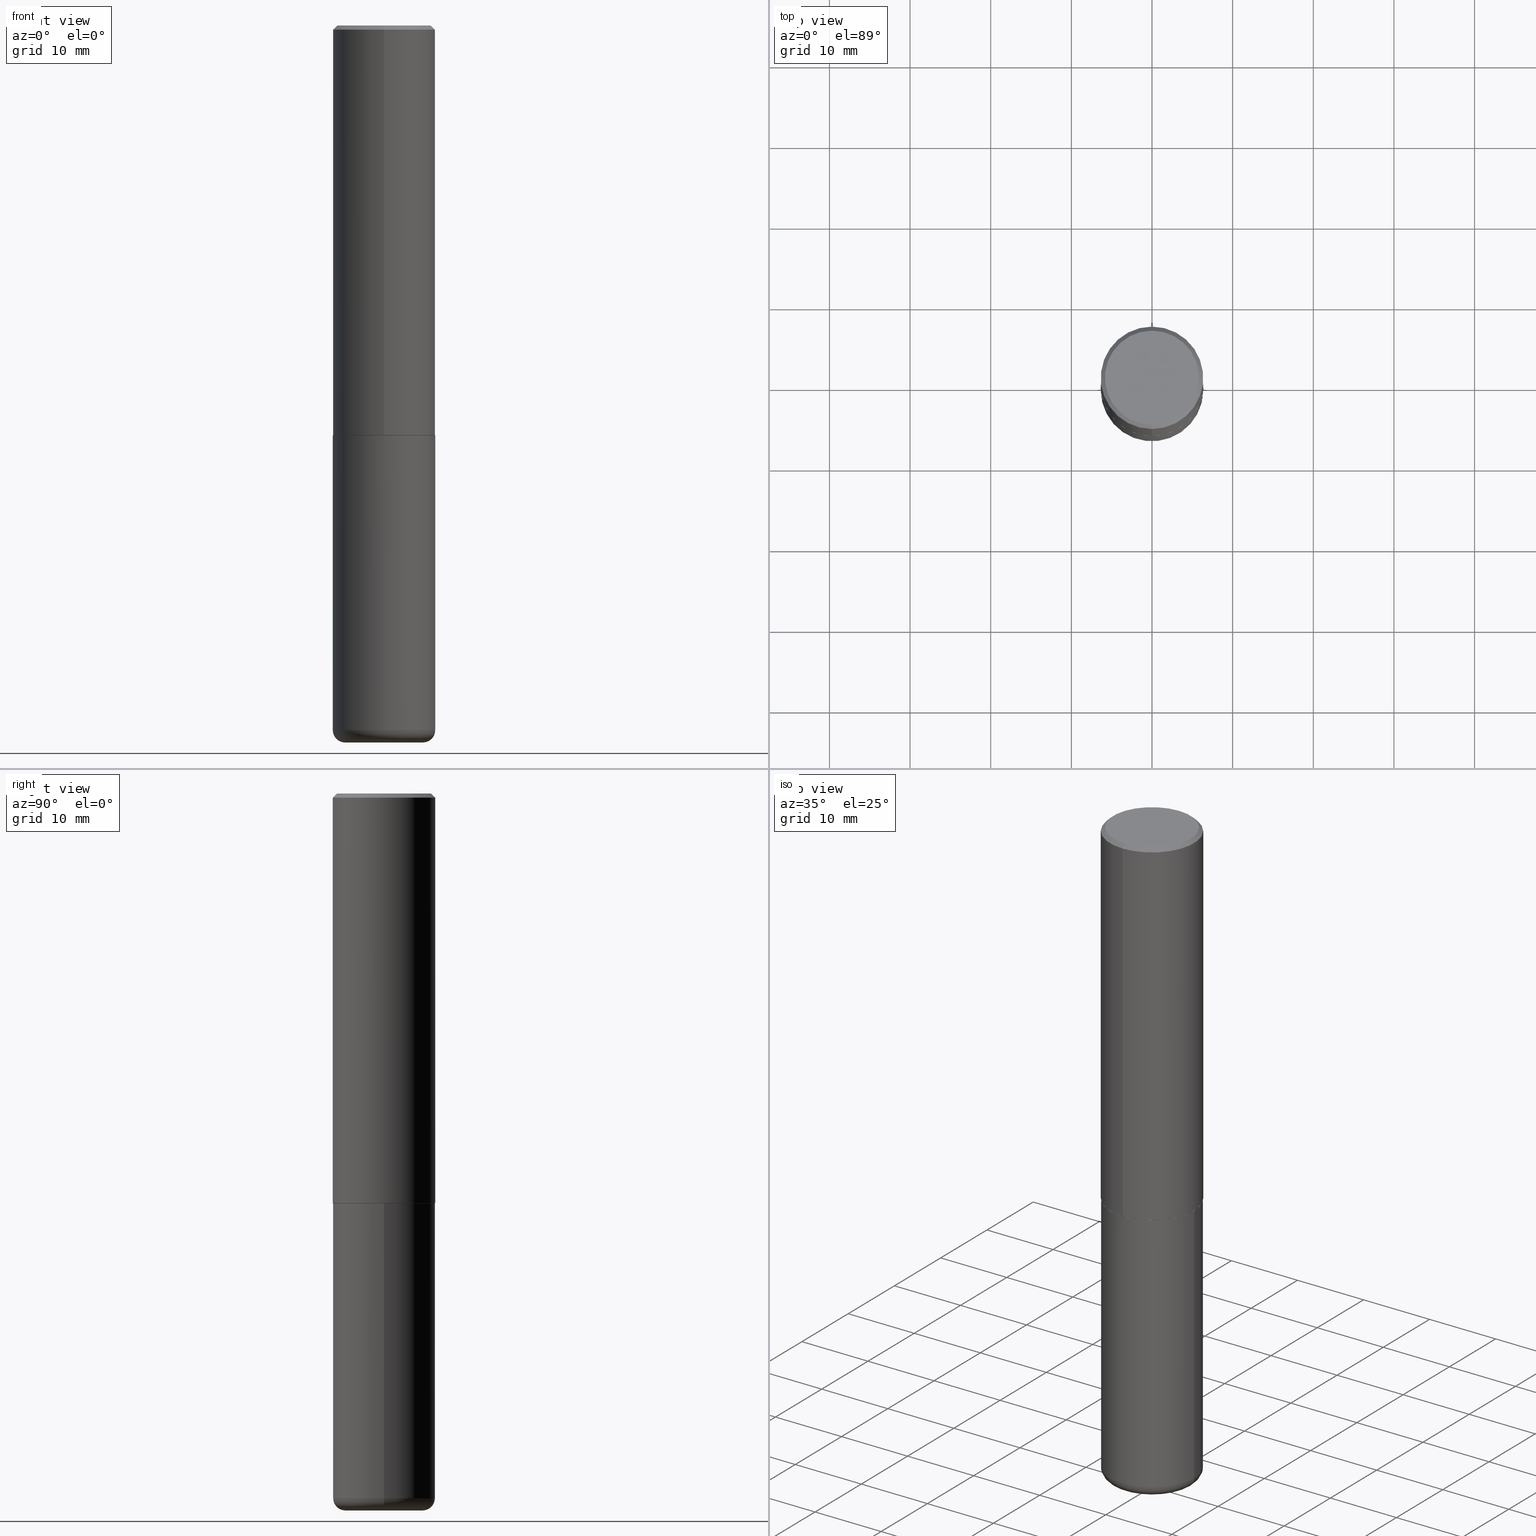
[diagram: canonical four-view strip — front | top / right | iso, engineering-drawing reading convention]
A machine part, canonical four-view strip (front | top / right | iso — engineering-drawing reading convention). The complete STEP part file that produces these views, byte-faithful:
ISO-10303-21;
HEADER;
FILE_DESCRIPTION (( 'STEP AP203' ),
    '1' );
FILE_NAME ('77362.STEP',
    '2024-05-02T19:32:27',
    ( '' ),
    ( '' ),
    'SwSTEP 2.0',
    'SolidWorks 2023',
    '' );
FILE_SCHEMA (( 'CONFIG_CONTROL_DESIGN' ));
ENDSEC;

DATA;
#1 = DIRECTION ( 'NONE',  ( -2.445468806185136597E-29, 3.491481338843145583E-15, 1.000000000000000000 ) ) ;
#2 = ORIENTED_EDGE ( 'NONE', *, *, #330, .F. ) ;
#3 = DIRECTION ( 'NONE',  ( 1.000000000000000000, -6.982962677686266711E-15, 0.000000000000000000 ) ) ;
#4 = AXIS2_PLACEMENT_3D ( 'NONE', #46, #335, #267 ) ;
#5 = VERTEX_POINT ( 'NONE', #36 ) ;
#6 = CIRCLE ( 'NONE', #179, 0.2500000000000002776 ) ;
#7 = LINE ( 'NONE', #38, #64 ) ;
#8 = EDGE_CURVE ( 'NONE', #130, #129, #63, .T. ) ;
#9 = PLANE ( 'NONE',  #332 ) ;
#10 = VECTOR ( 'NONE', #376, 39.37007874015748143 ) ;
#11 = AXIS2_PLACEMENT_3D ( 'NONE', #74, #359, #169 ) ;
#12 = CC_DESIGN_PERSON_AND_ORGANIZATION_ASSIGNMENT ( #148, #124, ( #87 ) ) ;
#13 = DIRECTION ( 'NONE',  ( -6.982962677686266711E-15, -1.000000000000000000, 3.493471632758652550E-15 ) ) ;
#14 = CARTESIAN_POINT ( 'NONE',  ( 1.675911042644703182E-15, 0.2299999999999997047, -4.914392961565924424E-16 ) ) ;
#15 = CARTESIAN_POINT ( 'NONE',  ( 0.2500000000000000000, -1.745740669421566678E-15, 1.219044193948983948E-29 ) ) ;
#16 = COORDINATED_UNIVERSAL_TIME_OFFSET ( 5, 0, .BEHIND. ) ;
#17 = DIRECTION ( 'NONE',  ( -6.982962677686265133E-15, -1.000000000000000000, 3.291383124896702687E-15 ) ) ;
#18 = PERSON_AND_ORGANIZATION ( #367, #388 ) ;
#19 = APPROVAL_DATE_TIME ( #308, #116 ) ;
#20 = PRODUCT_DEFINITION_FORMATION_WITH_SPECIFIED_SOURCE ( 'ANY', '', #149, .NOT_KNOWN. ) ;
#21 = ADVANCED_FACE ( 'NONE', ( #107 ), #409, .T. ) ;
#22 = CARTESIAN_POINT ( 'NONE',  ( 0.000000000000000000, 0.000000000000000000, 0.000000000000000000 ) ) ;
#23 = DATE_TIME_ROLE ( 'creation_date' ) ;
#24 = APPLICATION_CONTEXT ( 'configuration controlled 3d designs of mechanical parts and assemblies' ) ;
#25 = EDGE_LOOP ( 'NONE', ( #248, #66 ) ) ;
#26 = DIRECTION ( 'NONE',  ( 1.000000000000000000, -6.982962677686265133E-15, 4.883557194083112340E-29 ) ) ;
#27 = PERSON_AND_ORGANIZATION ( #367, #388 ) ;
#28 = ORIENTED_EDGE ( 'NONE', *, *, #384, .F. ) ;
#29 = APPROVAL_PERSON_ORGANIZATION ( #214, #116, #408 ) ;
#30 = EDGE_LOOP ( 'NONE', ( #85, #31, #226, #256 ) ) ;
#31 = ORIENTED_EDGE ( 'NONE', *, *, #299, .T. ) ;
#32 = ORIENTED_EDGE ( 'NONE', *, *, #177, .T. ) ;
#33 = DIRECTION ( 'NONE',  ( -6.982962677686265922E-15, -1.000000000000000000, 3.493471632758652550E-15 ) ) ;
#34 = DIRECTION ( 'NONE',  ( 1.000000000000000000, -6.982962677686270655E-15, 0.000000000000000000 ) ) ;
#35 = CLOSED_SHELL ( 'NONE', ( #69, #232, #265, #192, #39, #21, #412, #53 ) ) ;
#36 = CARTESIAN_POINT ( 'NONE',  ( -1.646519519465166376E-15, -0.2299999999999997047, 1.115557654912385711E-15 ) ) ;
#37 = APPROVAL ( #372, 'UNSPECIFIED' ) ;
#38 = CARTESIAN_POINT ( 'NONE',  ( -1.715124499442882496E-15, -0.2500000000000001110, -0.01999999999999921632 ) ) ;
#39 = ADVANCED_FACE ( 'NONE', ( #120 ), #57, .T. ) ;
#40 = CARTESIAN_POINT ( 'NONE',  ( -1.745740669421519543E-15, -0.2500000000000072720, -1.998999999999999000 ) ) ;
#41 = DIRECTION ( 'NONE',  ( -6.982962677686266711E-15, -1.000000000000000000, 3.491481338843145583E-15 ) ) ;
#42 = EDGE_CURVE ( 'NONE', #229, #252, #275, .T. ) ;
#43 = DIRECTION ( 'NONE',  ( 1.000000000000000000, -6.982962677686265133E-15, 4.883557194083112340E-29 ) ) ;
#44 = CARTESIAN_POINT ( 'NONE',  ( 4.888157982744351127E-29, -6.986943265517304311E-15, -2.000000000000000000 ) ) ;
#45 = AXIS2_PLACEMENT_3D ( 'NONE', #363, #80, #207 ) ;
#46 = CARTESIAN_POINT ( 'NONE',  ( 4.885713903752978284E-29, -6.983449793884546288E-15, -1.998999999999999888 ) ) ;
#47 =( NAMED_UNIT ( * ) SI_UNIT ( $, .STERADIAN. ) SOLID_ANGLE_UNIT ( ) );
#48 = MECHANICAL_CONTEXT ( 'NONE', #24, 'mechanical' ) ;
#49 = APPROVAL_ROLE ( '' ) ;
#50 = AXIS2_PLACEMENT_3D ( 'NONE', #300, #203, #239 ) ;
#51 = AXIS2_PLACEMENT_3D ( 'NONE', #187, #253, #288 ) ;
#52 = CALENDAR_DATE ( 2024, 2, 5 ) ;
#53 = ADVANCED_FACE ( 'NONE', ( #54 ), #224, .F. ) ;
#54 = FACE_OUTER_BOUND ( 'NONE', #25, .T. ) ;
#55 = APPROVAL_DATE_TIME ( #217, #37 ) ;
#56 = ORIENTED_EDGE ( 'NONE', *, *, #62, .T. ) ;
#57 = CYLINDRICAL_SURFACE ( 'NONE', #240, 0.2500000000000001110 ) ;
#58 = PERSON_AND_ORGANIZATION_ROLE ( 'design_supplier' ) ;
#59 = ORIENTED_EDGE ( 'NONE', *, *, #307, .T. ) ;
#60 = EDGE_CURVE ( 'NONE', #152, #129, #244, .T. ) ;
#61 = ORIENTED_EDGE ( 'NONE', *, *, #373, .F. ) ;
#62 = EDGE_CURVE ( 'NONE', #225, #285, #342, .T. ) ;
#63 = CIRCLE ( 'NONE', #121, 0.2500000000000000000 ) ;
#64 = VECTOR ( 'NONE', #296, 39.37007874015748854 ) ;
#65 = LOCAL_TIME ( 15, 32, 27.00000000000000000, #284 ) ;
#66 = ORIENTED_EDGE ( 'NONE', *, *, #350, .T. ) ;
#67 = ORIENTED_EDGE ( 'NONE', *, *, #142, .F. ) ;
#68 = CARTESIAN_POINT ( 'NONE',  ( 1.745740669421567269E-15, 0.2499999999999999722, -0.02000000000000096492 ) ) ;
#69 = ADVANCED_FACE ( 'NONE', ( #140 ), #73, .T. ) ;
#70 = ORIENTED_EDGE ( 'NONE', *, *, #185, .T. ) ;
#71 = DIRECTION ( 'NONE',  ( 2.444078991372175563E-29, -3.493471632758652550E-15, -1.000000000000000000 ) ) ;
#72 = CARTESIAN_POINT ( 'NONE',  ( 4.888157982744373443E-31, -6.986943265517335816E-17, -0.02000000000000009062 ) ) ;
#73 = CONICAL_SURFACE ( 'NONE', #402, 0.2489999999999999991, 0.7853981633975507526 ) ;
#74 = CARTESIAN_POINT ( 'NONE',  ( 8.559140821647976968E-29, -1.222018468595100934E-14, -3.500000000000000000 ) ) ;
#75 = PRODUCT_DEFINITION_SHAPE ( 'NONE', 'NONE',  #87 ) ;
#76 = DIRECTION ( 'NONE',  ( -2.445468806185136597E-29, 3.491481338843145583E-15, 1.000000000000000000 ) ) ;
#77 = DIRECTION ( 'NONE',  ( -2.445468806185136597E-29, 3.491481338843145583E-15, 1.000000000000000000 ) ) ;
#78 = AXIS2_PLACEMENT_3D ( 'NONE', #227, #391, #13 ) ;
#79 = LOCAL_TIME ( 15, 32, 27.00000000000000000, #340 ) ;
#80 = DIRECTION ( 'NONE',  ( 0.000000000000000000, 0.000000000000000000, 1.000000000000000000 ) ) ;
#81 = DESIGN_CONTEXT ( 'detailed design', #90, 'design' ) ;
#82 = PERSON_AND_ORGANIZATION_ROLE ( 'design_owner' ) ;
#83 = ADVANCED_FACE ( 'NONE', ( #172 ), #268, .F. ) ;
#84 = ORIENTED_EDGE ( 'NONE', *, *, #271, .T. ) ;
#85 = ORIENTED_EDGE ( 'NONE', *, *, #350, .F. ) ;
#86 =( GEOMETRIC_REPRESENTATION_CONTEXT ( 3 ) GLOBAL_UNCERTAINTY_ASSIGNED_CONTEXT ( ( #344 ) ) GLOBAL_UNIT_ASSIGNED_CONTEXT ( ( #328, #208, #47 ) ) REPRESENTATION_CONTEXT ( 'NONE', 'WORKASPACE' ) );
#87 = PRODUCT_DEFINITION ( 'UNKNOWN', '', #20, #81 ) ;
#88 = CALENDAR_DATE ( 2024, 2, 5 ) ;
#89 = AXIS2_PLACEMENT_3D ( 'NONE', #327, #266, #3 ) ;
#90 = APPLICATION_CONTEXT ( 'configuration controlled 3d designs of mechanical parts and assemblies' ) ;
#91 = ORIENTED_EDGE ( 'NONE', *, *, #185, .F. ) ;
#92 = DIRECTION ( 'NONE',  ( -2.444078991372175563E-29, 3.493471632758652550E-15, 1.000000000000000000 ) ) ;
#93 = PERSON_AND_ORGANIZATION ( #367, #388 ) ;
#94 = CC_DESIGN_PERSON_AND_ORGANIZATION_ASSIGNMENT ( #269, #82, ( #149 ) ) ;
#95 = ORIENTED_EDGE ( 'NONE', *, *, #60, .F. ) ;
#96 = ORIENTED_EDGE ( 'NONE', *, *, #8, .T. ) ;
#97 = TOROIDAL_SURFACE ( 'NONE', #193, 0.1899999999999999745, 0.05999999999999995615 ) ;
#98 = AXIS2_PLACEMENT_3D ( 'NONE', #181, #71, #174 ) ;
#99 = APPROVAL_DATE_TIME ( #182, #273 ) ;
#100 = VERTEX_POINT ( 'NONE', #14 ) ;
#101 = CARTESIAN_POINT ( 'NONE',  ( -0.2499999999999999722, -1.023433896622016898E-14, -3.439999999999999947 ) ) ;
#102 = ORIENTED_EDGE ( 'NONE', *, *, #292, .F. ) ;
#103 = DIRECTION ( 'NONE',  ( 5.024295867788576727E-15, 0.7071067811866224018, 0.7071067811864726327 ) ) ;
#104 = DIRECTION ( 'NONE',  ( -2.444078991372175563E-29, 3.493471632758652550E-15, 1.000000000000000000 ) ) ;
#105 = CARTESIAN_POINT ( 'NONE',  ( 8.412412693276869938E-29, -1.201069580562042103E-14, -3.439999999999999947 ) ) ;
#106 = DIRECTION ( 'NONE',  ( -6.982962677686265133E-15, -1.000000000000000000, 3.291383124896702687E-15 ) ) ;
#107 = FACE_OUTER_BOUND ( 'NONE', #133, .T. ) ;
#108 = LINE ( 'NONE', #68, #416 ) ;
#109 = CARTESIAN_POINT ( 'NONE',  ( -1.738757706743831360E-15, -0.2490000000000069935, -1.999999999999999112 ) ) ;
#110 = CARTESIAN_POINT ( 'NONE',  ( 8.412412693276869938E-29, -1.201069580562042103E-14, -3.439999999999999947 ) ) ;
#111 = LINE ( 'NONE', #233, #10 ) ;
#112 = FACE_OUTER_BOUND ( 'NONE', #164, .T. ) ;
#113 = DIRECTION ( 'NONE',  ( -6.982962677686265922E-15, -1.000000000000000000, 3.278217592397112312E-15 ) ) ;
#114 = DIRECTION ( 'NONE',  ( 2.438088387897960049E-29, -3.491481338843145188E-15, -1.000000000000000000 ) ) ;
#115 = CC_DESIGN_APPROVAL ( #37, ( #20 ) ) ;
#116 = APPROVAL ( #154, 'UNSPECIFIED' ) ;
#117 = CARTESIAN_POINT ( 'NONE',  ( -1.715124499442882496E-15, -0.2500000000000001110, -0.01999999999999921632 ) ) ;
#118 = VERTEX_POINT ( 'NONE', #109 ) ;
#119 = EDGE_CURVE ( 'NONE', #366, #152, #355, .T. ) ;
#120 = FACE_OUTER_BOUND ( 'NONE', #390, .T. ) ;
#121 = AXIS2_PLACEMENT_3D ( 'NONE', #377, #1, #393 ) ;
#122 = APPROVAL_ROLE ( '' ) ;
#123 = CIRCLE ( 'NONE', #333, 0.2299999999999997047 ) ;
#124 = PERSON_AND_ORGANIZATION_ROLE ( 'creator' ) ;
#125 = EDGE_LOOP ( 'NONE', ( #67, #160 ) ) ;
#126 = CALENDAR_DATE ( 2024, 2, 5 ) ;
#127 = CONICAL_SURFACE ( 'NONE', #98, 0.2500000000000000555, 0.7853981633974466137 ) ;
#128 = ORIENTED_EDGE ( 'NONE', *, *, #302, .T. ) ;
#129 = VERTEX_POINT ( 'NONE', #175 ) ;
#130 = VERTEX_POINT ( 'NONE', #237 ) ;
#131 = LINE ( 'NONE', #230, #286 ) ;
#132 = LOCAL_TIME ( 15, 32, 27.00000000000000000, #16 ) ;
#133 = EDGE_LOOP ( 'NONE', ( #28, #195, #321, #197 ) ) ;
#134 = DIRECTION ( 'NONE',  ( 2.438088387897960049E-29, -3.491481338843145188E-15, -1.000000000000000000 ) ) ;
#135 = FACE_OUTER_BOUND ( 'NONE', #311, .T. ) ;
#136 = ADVANCED_FACE ( 'NONE', ( #360 ), #9, .T. ) ;
#137 = VECTOR ( 'NONE', #92, 39.37007874015748143 ) ;
#138 = APPROVAL_PERSON_ORGANIZATION ( #18, #37, #122 ) ;
#139 = CARTESIAN_POINT ( 'NONE',  ( 8.412412693276869938E-29, -1.201069580562042103E-14, -3.439999999999999947 ) ) ;
#140 = FACE_OUTER_BOUND ( 'NONE', #157, .T. ) ;
#141 = CARTESIAN_POINT ( 'NONE',  ( 0.000000000000000000, 0.000000000000000000, 0.000000000000000000 ) ) ;
#142 = EDGE_CURVE ( 'NONE', #366, #225, #165, .T. ) ;
#143 = CARTESIAN_POINT ( 'NONE',  ( 1.769251412042697971E-15, 0.2489999999999930047, -2.000000000000000888 ) ) ;
#144 = VECTOR ( 'NONE', #147, 39.37007874015748143 ) ;
#145 = CIRCLE ( 'NONE', #11, 0.1899999999999999745 ) ;
#146 = EDGE_LOOP ( 'NONE', ( #243, #283, #84, #274 ) ) ;
#147 = DIRECTION ( 'NONE',  ( -2.445468806185136877E-29, 3.491481338843145188E-15, 1.000000000000000000 ) ) ;
#148 = PERSON_AND_ORGANIZATION ( #367, #388 ) ;
#149 = PRODUCT ( '77362', '77362', '', ( #48 ) ) ;
#150 = AXIS2_PLACEMENT_3D ( 'NONE', #139, #263, #26 ) ;
#151 = PERSON_AND_ORGANIZATION ( #367, #388 ) ;
#152 = VERTEX_POINT ( 'NONE', #336 ) ;
#153 = DIRECTION ( 'NONE',  ( -2.444078991372175563E-29, 3.493471632758652550E-15, 1.000000000000000000 ) ) ;
#154 = APPROVAL_STATUS ( 'not_yet_approved' ) ;
#155 = CC_DESIGN_PERSON_AND_ORGANIZATION_ASSIGNMENT ( #151, #282, ( #20 ) ) ;
#156 = ADVANCED_BREP_SHAPE_REPRESENTATION ( '77362', ( #194, #315, #45 ), #86 ) ;
#157 = EDGE_LOOP ( 'NONE', ( #295, #348, #2, #418 ) ) ;
#158 = AXIS2_PLACEMENT_3D ( 'NONE', #313, #220, #17 ) ;
#159 = VECTOR ( 'NONE', #103, 39.37007874015748143 ) ;
#160 = ORIENTED_EDGE ( 'NONE', *, *, #405, .F. ) ;
#161 = EDGE_CURVE ( 'NONE', #252, #223, #369, .T. ) ;
#162 = ORIENTED_EDGE ( 'NONE', *, *, #405, .T. ) ;
#163 = DIRECTION ( 'NONE',  ( -2.445468806185136597E-29, 3.491481338843145583E-15, 1.000000000000000000 ) ) ;
#164 = EDGE_LOOP ( 'NONE', ( #102, #189 ) ) ;
#165 = CIRCLE ( 'NONE', #293, 0.1899999999999999745 ) ;
#166 = CARTESIAN_POINT ( 'NONE',  ( 0.1899999999999999745, -1.354694759471140096E-14, -3.500000000000000000 ) ) ;
#167 = CC_DESIGN_APPROVAL ( #273, ( #317 ) ) ;
#168 = ORIENTED_EDGE ( 'NONE', *, *, #119, .F. ) ;
#169 = DIRECTION ( 'NONE',  ( 1.000000000000000000, -6.982962677686273021E-15, 0.000000000000000000 ) ) ;
#170 = DIRECTION ( 'NONE',  ( -4.937700262165053702E-15, -0.7071067811866175168, 0.7071067811864775177 ) ) ;
#171 = FACE_OUTER_BOUND ( 'NONE', #306, .T. ) ;
#172 = FACE_OUTER_BOUND ( 'NONE', #198, .T. ) ;
#173 = ADVANCED_FACE ( 'NONE', ( #171 ), #97, .T. ) ;
#174 = DIRECTION ( 'NONE',  ( 6.982962677686265133E-15, 1.000000000000000000, -3.500180241882336472E-15 ) ) ;
#175 = CARTESIAN_POINT ( 'NONE',  ( 0.2500000000000000000, -8.728703347107857054E-15, -2.000000000000000000 ) ) ;
#176 = FACE_OUTER_BOUND ( 'NONE', #314, .T. ) ;
#177 = EDGE_CURVE ( 'NONE', #285, #152, #270, .T. ) ;
#178 = CIRCLE ( 'NONE', #50, 0.2299999999999997047 ) ;
#179 = AXIS2_PLACEMENT_3D ( 'NONE', #397, #392, #113 ) ;
#180 = PERSON_AND_ORGANIZATION ( #367, #388 ) ;
#181 = CARTESIAN_POINT ( 'NONE',  ( 4.888157982744373443E-31, -6.986943265517335816E-17, -0.02000000000000009062 ) ) ;
#182 = DATE_AND_TIME ( #52, #132 ) ;
#183 = DIMENSIONAL_EXPONENTS ( 1.000000000000000000, 0.000000000000000000, 0.000000000000000000, 0.000000000000000000, 0.000000000000000000, 0.000000000000000000, 0.000000000000000000 ) ;
#184 = COORDINATED_UNIVERSAL_TIME_OFFSET ( 5, 0, .BEHIND. ) ;
#185 = EDGE_CURVE ( 'NONE', #349, #223, #111, .T. ) ;
#186 = ORIENTED_EDGE ( 'NONE', *, *, #302, .F. ) ;
#187 = CARTESIAN_POINT ( 'NONE',  ( 4.888157982744351127E-29, -6.986943265517304311E-15, -2.000000000000000000 ) ) ;
#188 = LINE ( 'NONE', #417, #204 ) ;
#189 = ORIENTED_EDGE ( 'NONE', *, *, #394, .F. ) ;
#190 = CARTESIAN_POINT ( 'NONE',  ( 1.606081415867839095E-15, 0.2299999999999997047, -6.474688858455407103E-16 ) ) ;
#191 = ORIENTED_EDGE ( 'NONE', *, *, #42, .F. ) ;
#192 = ADVANCED_FACE ( 'NONE', ( #354 ), #199, .T. ) ;
#193 = AXIS2_PLACEMENT_3D ( 'NONE', #357, #297, #43 ) ;
#194 = MANIFOLD_SOLID_BREP ( 'Body-Move/Copy2[1]', #298 ) ;
#195 = ORIENTED_EDGE ( 'NONE', *, *, #394, .T. ) ;
#196 = DIRECTION ( 'NONE',  ( 4.937700262164538576E-15, 0.7071067811865437980, -0.7071067811865511255 ) ) ;
#197 = ORIENTED_EDGE ( 'NONE', *, *, #238, .F. ) ;
#198 = EDGE_LOOP ( 'NONE', ( #59, #96 ) ) ;
#199 = CONICAL_SURFACE ( 'NONE', #278, 0.2500000000000000555, 0.7853981633974466137 ) ;
#200 = CARTESIAN_POINT ( 'NONE',  ( 8.559140821647976968E-29, -1.222018468595100934E-14, -3.500000000000000000 ) ) ;
#201 = PRODUCT_RELATED_PRODUCT_CATEGORY ( 'detail', '', ( #149 ) ) ;
#202 = CC_DESIGN_DATE_AND_TIME_ASSIGNMENT ( #406, #23, ( #87 ) ) ;
#203 = DIRECTION ( 'NONE',  ( -2.444078991372175563E-29, 3.493471632758652550E-15, 1.000000000000000000 ) ) ;
#204 = VECTOR ( 'NONE', #398, 39.37007874015748143 ) ;
#205 = LOCAL_TIME ( 15, 32, 27.00000000000000000, #184 ) ;
#206 = LINE ( 'NONE', #143, #159 ) ;
#207 = DIRECTION ( 'NONE',  ( 1.000000000000000000, 0.000000000000000000, 0.000000000000000000 ) ) ;
#208 =( NAMED_UNIT ( * ) PLANE_ANGLE_UNIT ( ) SI_UNIT ( $, .RADIAN. ) );
#209 = ORIENTED_EDGE ( 'NONE', *, *, #42, .T. ) ;
#210 = DIRECTION ( 'NONE',  ( 1.000000000000000000, -6.982962677686266711E-15, 4.876176775795935793E-29 ) ) ;
#211 = AXIS2_PLACEMENT_3D ( 'NONE', #358, #41, #272 ) ;
#212 = ORIENTED_EDGE ( 'NONE', *, *, #219, .T. ) ;
#213 = DIRECTION ( 'NONE',  ( 7.105427357601001859E-15, 1.000000000000000000, -3.491481338843145583E-15 ) ) ;
#214 = PERSON_AND_ORGANIZATION ( #367, #388 ) ;
#215 = CARTESIAN_POINT ( 'NONE',  ( 1.776356839400276103E-15, 0.2499999999999932832, -1.999000000000000776 ) ) ;
#216 = DIRECTION ( 'NONE',  ( -1.000000000000000000, 7.105427357600997914E-15, 0.000000000000000000 ) ) ;
#217 = DATE_AND_TIME ( #343, #79 ) ;
#218 = SHAPE_DEFINITION_REPRESENTATION ( #75, #156 ) ;
#219 = EDGE_CURVE ( 'NONE', #285, #130, #188, .T. ) ;
#220 = DIRECTION ( 'NONE',  ( -2.444078991372175563E-29, 3.493471632758652550E-15, 1.000000000000000000 ) ) ;
#221 = AXIS2_PLACEMENT_3D ( 'NONE', #401, #364, #338 ) ;
#222 = APPROVAL_PERSON_ORGANIZATION ( #93, #273, #49 ) ;
#223 = VERTEX_POINT ( 'NONE', #117 ) ;
#224 = PLANE ( 'NONE',  #322 ) ;
#225 = VERTEX_POINT ( 'NONE', #368 ) ;
#226 = ORIENTED_EDGE ( 'NONE', *, *, #373, .T. ) ;
#227 = CARTESIAN_POINT ( 'NONE',  ( 0.000000000000000000, 0.000000000000000000, 0.000000000000000000 ) ) ;
#228 = CIRCLE ( 'NONE', #324, 0.2500000000000000000 ) ;
#229 = VERTEX_POINT ( 'NONE', #215 ) ;
#230 = CARTESIAN_POINT ( 'NONE',  ( -1.738757706743831360E-15, -0.2490000000000069935, -1.999999999999999112 ) ) ;
#231 = ORIENTED_EDGE ( 'NONE', *, *, #62, .F. ) ;
#232 = ADVANCED_FACE ( 'NONE', ( #281 ), #413, .T. ) ;
#233 = CARTESIAN_POINT ( 'NONE',  ( -1.745740669421567467E-15, -0.2500000000000001110, 8.733679081896635319E-16 ) ) ;
#234 = DIRECTION ( 'NONE',  ( -6.982962677686265133E-15, -1.000000000000000000, 3.291383124896702687E-15 ) ) ;
#235 = AXIS2_PLACEMENT_3D ( 'NONE', #319, #389, #234 ) ;
#236 = DIRECTION ( 'NONE',  ( 2.444078991372175563E-29, -3.493471632758652550E-15, -1.000000000000000000 ) ) ;
#237 = CARTESIAN_POINT ( 'NONE',  ( -0.2500000000000000000, -7.720472402253106025E-15, -2.000000000000000000 ) ) ;
#238 = EDGE_CURVE ( 'NONE', #229, #349, #374, .T. ) ;
#239 = DIRECTION ( 'NONE',  ( -6.982962677686265922E-15, -1.000000000000000000, 3.493471632758652550E-15 ) ) ;
#240 = AXIS2_PLACEMENT_3D ( 'NONE', #414, #153, #249 ) ;
#241 = ADVANCED_FACE ( 'NONE', ( #176 ), #361, .T. ) ;
#242 = CARTESIAN_POINT ( 'NONE',  ( 8.559140821647976968E-29, -1.222018468595100934E-14, -3.500000000000000000 ) ) ;
#243 = ORIENTED_EDGE ( 'NONE', *, *, #299, .F. ) ;
#244 = LINE ( 'NONE', #15, #144 ) ;
#245 = DIRECTION ( 'NONE',  ( 6.982962677686265922E-15, 1.000000000000000000, -3.493471632758652550E-15 ) ) ;
#246 = EDGE_CURVE ( 'NONE', #100, #5, #178, .T. ) ;
#247 = DIRECTION ( 'NONE',  ( -2.445468806185136597E-29, 3.491481338843145583E-15, 1.000000000000000000 ) ) ;
#248 = ORIENTED_EDGE ( 'NONE', *, *, #246, .T. ) ;
#249 = DIRECTION ( 'NONE',  ( -6.982962677686266711E-15, -1.000000000000000000, 3.493471632758652550E-15 ) ) ;
#250 = DATE_AND_TIME ( #126, #65 ) ;
#251 = CIRCLE ( 'NONE', #309, 0.2500000000000000555 ) ;
#252 = VERTEX_POINT ( 'NONE', #410 ) ;
#253 = DIRECTION ( 'NONE',  ( -2.444078991372175283E-29, 3.493471632758652550E-15, 1.000000000000000000 ) ) ;
#254 = CC_DESIGN_PERSON_AND_ORGANIZATION_ASSIGNMENT ( #27, #305, ( #317 ) ) ;
#255 = ORIENTED_EDGE ( 'NONE', *, *, #238, .T. ) ;
#256 = ORIENTED_EDGE ( 'NONE', *, *, #271, .F. ) ;
#257 = AXIS2_PLACEMENT_3D ( 'NONE', #371, #213, #216 ) ;
#258 = CIRCLE ( 'NONE', #235, 0.2489999999999999991 ) ;
#259 = DIRECTION ( 'NONE',  ( -2.444078991372175563E-29, 3.493471632758652550E-15, 1.000000000000000000 ) ) ;
#260 = EDGE_LOOP ( 'NONE', ( #287, #32, #289, #387 ) ) ;
#261 = ADVANCED_FACE ( 'NONE', ( #301 ), #310, .T. ) ;
#262 = CARTESIAN_POINT ( 'NONE',  ( 4.888157982744373443E-31, -6.986943265517335816E-17, -0.02000000000000009062 ) ) ;
#263 = DIRECTION ( 'NONE',  ( -2.445468806185136597E-29, 3.491481338843145583E-15, 1.000000000000000000 ) ) ;
#264 = TOROIDAL_SURFACE ( 'NONE', #150, 0.1899999999999999745, 0.05999999999999995615 ) ;
#265 = ADVANCED_FACE ( 'NONE', ( #277 ), #127, .T. ) ;
#266 = DIRECTION ( 'NONE',  ( -2.445468806185136597E-29, 3.491481338843145583E-15, 1.000000000000000000 ) ) ;
#267 = DIRECTION ( 'NONE',  ( -6.982962677686265922E-15, -1.000000000000000000, 3.278217592397112312E-15 ) ) ;
#268 = PLANE ( 'NONE',  #386 ) ;
#269 = PERSON_AND_ORGANIZATION ( #367, #388 ) ;
#270 = CIRCLE ( 'NONE', #303, 0.2500000000000000000 ) ;
#271 = EDGE_CURVE ( 'NONE', #100, #252, #108, .T. ) ;
#272 = DIRECTION ( 'NONE',  ( 1.000000000000000000, -6.982962677686274599E-15, 0.000000000000000000 ) ) ;
#273 = APPROVAL ( #339, 'UNSPECIFIED' ) ;
#274 = ORIENTED_EDGE ( 'NONE', *, *, #161, .T. ) ;
#275 = LINE ( 'NONE', #378, #137 ) ;
#276 = COORDINATED_UNIVERSAL_TIME_OFFSET ( 5, 0, .BEHIND. ) ;
#277 = FACE_OUTER_BOUND ( 'NONE', #30, .T. ) ;
#278 = AXIS2_PLACEMENT_3D ( 'NONE', #72, #236, #381 ) ;
#279 = CC_DESIGN_PERSON_AND_ORGANIZATION_ASSIGNMENT ( #180, #58, ( #20 ) ) ;
#280 = CIRCLE ( 'NONE', #304, 0.2489999999999999991 ) ;
#281 = FACE_OUTER_BOUND ( 'NONE', #383, .T. ) ;
#282 = PERSON_AND_ORGANIZATION_ROLE ( 'creator' ) ;
#283 = ORIENTED_EDGE ( 'NONE', *, *, #246, .F. ) ;
#284 = COORDINATED_UNIVERSAL_TIME_OFFSET ( 5, 0, .BEHIND. ) ;
#285 = VERTEX_POINT ( 'NONE', #101 ) ;
#286 = VECTOR ( 'NONE', #170, 39.37007874015748143 ) ;
#287 = ORIENTED_EDGE ( 'NONE', *, *, #219, .F. ) ;
#288 = DIRECTION ( 'NONE',  ( -6.982962677686265922E-15, -1.000000000000000000, 3.493471632758652550E-15 ) ) ;
#289 = ORIENTED_EDGE ( 'NONE', *, *, #60, .T. ) ;
#290 = LENGTH_MEASURE_WITH_UNIT ( LENGTH_MEASURE( 0.02539999999999999897 ), #385 );
#291 = VERTEX_POINT ( 'NONE', #325 ) ;
#292 = EDGE_CURVE ( 'NONE', #118, #291, #258, .T. ) ;
#293 = AXIS2_PLACEMENT_3D ( 'NONE', #242, #77, #362 ) ;
#294 = CC_DESIGN_APPROVAL ( #116, ( #87 ) ) ;
#295 = ORIENTED_EDGE ( 'NONE', *, *, #292, .T. ) ;
#296 = DIRECTION ( 'NONE',  ( -4.851104656540954809E-15, -0.7071067811865486830, -0.7071067811865462405 ) ) ;
#297 = DIRECTION ( 'NONE',  ( -2.445468806185136597E-29, 3.491481338843145583E-15, 1.000000000000000000 ) ) ;
#298 = CLOSED_SHELL ( 'NONE', ( #241, #407, #83, #261, #173, #136 ) ) ;
#299 = EDGE_CURVE ( 'NONE', #5, #223, #7, .T. ) ;
#300 = CARTESIAN_POINT ( 'NONE',  ( -7.626972843823584403E-45, 1.090169890898625670E-30, 3.120591793778966343E-16 ) ) ;
#301 = FACE_OUTER_BOUND ( 'NONE', #260, .T. ) ;
#302 = EDGE_CURVE ( 'NONE', #152, #285, #228, .T. ) ;
#303 = AXIS2_PLACEMENT_3D ( 'NONE', #105, #247, #34 ) ;
#304 = AXIS2_PLACEMENT_3D ( 'NONE', #331, #323, #106 ) ;
#305 = PERSON_AND_ORGANIZATION_ROLE ( 'classification_officer' ) ;
#306 = EDGE_LOOP ( 'NONE', ( #231, #162, #318, #382 ) ) ;
#307 = EDGE_CURVE ( 'NONE', #129, #130, #403, .T. ) ;
#308 = DATE_AND_TIME ( #411, #205 ) ;
#309 = AXIS2_PLACEMENT_3D ( 'NONE', #262, #104, #353 ) ;
#310 = CYLINDRICAL_SURFACE ( 'NONE', #396, 0.2500000000000000000 ) ;
#311 = EDGE_LOOP ( 'NONE', ( #316, #56, #186, #168 ) ) ;
#312 = SECURITY_CLASSIFICATION_LEVEL ( 'unclassified' ) ;
#313 = CARTESIAN_POINT ( 'NONE',  ( 4.888157982744351127E-29, -6.986943265517304311E-15, -2.000000000000000000 ) ) ;
#314 = EDGE_LOOP ( 'NONE', ( #128, #212, #346, #95 ) ) ;
#315 = MANIFOLD_SOLID_BREP ( 'Body-Move/Copy2[2]', #35 ) ;
#316 = ORIENTED_EDGE ( 'NONE', *, *, #142, .T. ) ;
#317 = SECURITY_CLASSIFICATION ( '', '', #312 ) ;
#318 = ORIENTED_EDGE ( 'NONE', *, *, #119, .T. ) ;
#319 = CARTESIAN_POINT ( 'NONE',  ( 4.888157982744351127E-29, -6.986943265517304311E-15, -2.000000000000000000 ) ) ;
#320 = ORIENTED_EDGE ( 'NONE', *, *, #330, .T. ) ;
#321 = ORIENTED_EDGE ( 'NONE', *, *, #337, .T. ) ;
#322 = AXIS2_PLACEMENT_3D ( 'NONE', #190, #347, #245 ) ;
#323 = DIRECTION ( 'NONE',  ( -2.444078991372175563E-29, 3.493471632758652550E-15, 1.000000000000000000 ) ) ;
#324 = AXIS2_PLACEMENT_3D ( 'NONE', #110, #163, #356 ) ;
#325 = CARTESIAN_POINT ( 'NONE',  ( 1.772804125721499462E-15, 0.2489999999999930047, -2.000000000000000888 ) ) ;
#326 = DIRECTION ( 'NONE',  ( -1.000000000000000000, 6.982962677686265922E-15, -4.876176775795935793E-29 ) ) ;
#327 = CARTESIAN_POINT ( 'NONE',  ( 4.890937612370273194E-29, -6.982962677686291165E-15, -2.000000000000000000 ) ) ;
#328 =( CONVERSION_BASED_UNIT ( 'INCH', #290 ) LENGTH_UNIT ( ) NAMED_UNIT ( #183 ) );
#329 = DIRECTION ( 'NONE',  ( -2.444078991372175563E-29, 3.493471632758652550E-15, 1.000000000000000000 ) ) ;
#330 = EDGE_CURVE ( 'NONE', #349, #229, #6, .T. ) ;
#331 = CARTESIAN_POINT ( 'NONE',  ( 4.888157982744351127E-29, -6.986943265517304311E-15, -2.000000000000000000 ) ) ;
#332 = AXIS2_PLACEMENT_3D ( 'NONE', #200, #114, #326 ) ;
#333 = AXIS2_PLACEMENT_3D ( 'NONE', #351, #259, #33 ) ;
#334 = APPLICATION_PROTOCOL_DEFINITION ( 'international standard', 'config_control_design', 1994, #24 ) ;
#335 = DIRECTION ( 'NONE',  ( -2.444078991372175563E-29, 3.493471632758652550E-15, 1.000000000000000000 ) ) ;
#336 = CARTESIAN_POINT ( 'NONE',  ( 0.2499999999999999722, -1.375643647504198770E-14, -3.439999999999999947 ) ) ;
#337 = EDGE_CURVE ( 'NONE', #118, #349, #131, .T. ) ;
#338 = DIRECTION ( 'NONE',  ( -6.982962677686265133E-15, -1.000000000000000000, 3.500180241882336472E-15 ) ) ;
#339 = APPROVAL_STATUS ( 'not_yet_approved' ) ;
#340 = COORDINATED_UNIVERSAL_TIME_OFFSET ( 5, 0, .BEHIND. ) ;
#341 = APPLICATION_PROTOCOL_DEFINITION ( 'international standard', 'config_control_design', 1994, #90 ) ;
#342 = CIRCLE ( 'NONE', #257, 0.05999999999999994227 ) ;
#343 = CALENDAR_DATE ( 2024, 2, 5 ) ;
#344 = UNCERTAINTY_MEASURE_WITH_UNIT (LENGTH_MEASURE( 1.000000000000000082E-05 ), #328, 'distance_accuracy_value', 'NONE');
#345 = CC_DESIGN_DATE_AND_TIME_ASSIGNMENT ( #250, #380, ( #317 ) ) ;
#346 = ORIENTED_EDGE ( 'NONE', *, *, #307, .F. ) ;
#347 = DIRECTION ( 'NONE',  ( 2.444078991372175283E-29, -3.493471632758652550E-15, -1.000000000000000000 ) ) ;
#348 = ORIENTED_EDGE ( 'NONE', *, *, #384, .T. ) ;
#349 = VERTEX_POINT ( 'NONE', #40 ) ;
#350 = EDGE_CURVE ( 'NONE', #5, #100, #123, .T. ) ;
#351 = CARTESIAN_POINT ( 'NONE',  ( -7.626972843823584403E-45, 1.090169890898625670E-30, 3.120591793778966343E-16 ) ) ;
#352 = ORIENTED_EDGE ( 'NONE', *, *, #161, .F. ) ;
#353 = DIRECTION ( 'NONE',  ( -6.982962677686265133E-15, -1.000000000000000000, 3.500180241882336472E-15 ) ) ;
#354 = FACE_OUTER_BOUND ( 'NONE', #146, .T. ) ;
#355 = CIRCLE ( 'NONE', #211, 0.05999999999999994227 ) ;
#356 = DIRECTION ( 'NONE',  ( 1.000000000000000000, -6.982962677686270655E-15, 0.000000000000000000 ) ) ;
#357 = CARTESIAN_POINT ( 'NONE',  ( 8.412412693276869938E-29, -1.201069580562042103E-14, -3.439999999999999947 ) ) ;
#358 = CARTESIAN_POINT ( 'NONE',  ( 0.1899999999999999745, -1.333745871438081265E-14, -3.439999999999999947 ) ) ;
#359 = DIRECTION ( 'NONE',  ( -2.445468806185136597E-29, 3.491481338843145583E-15, 1.000000000000000000 ) ) ;
#360 = FACE_OUTER_BOUND ( 'NONE', #125, .T. ) ;
#361 = CYLINDRICAL_SURFACE ( 'NONE', #415, 0.2500000000000000000 ) ;
#362 = DIRECTION ( 'NONE',  ( 1.000000000000000000, -6.982962677686273021E-15, 0.000000000000000000 ) ) ;
#363 = CARTESIAN_POINT ( 'NONE',  ( 0.000000000000000000, 0.000000000000000000, 0.000000000000000000 ) ) ;
#364 = DIRECTION ( 'NONE',  ( -2.444078991372175563E-29, 3.493471632758652550E-15, 1.000000000000000000 ) ) ;
#365 = DIRECTION ( 'NONE',  ( -6.982962677686265133E-15, -1.000000000000000000, 3.291383124896702687E-15 ) ) ;
#366 = VERTEX_POINT ( 'NONE', #166 ) ;
#367 = PERSON ( 'UNSPECIFIED', 'UNSPECIFIED', 'UNSPECIFIED', ('UNSPECIFIED'), ('UNSPECIFIED'), ('UNSPECIFIED') ) ;
#368 = CARTESIAN_POINT ( 'NONE',  ( -0.1899999999999999745, -1.055224622711349575E-14, -3.500000000000000000 ) ) ;
#369 = CIRCLE ( 'NONE', #221, 0.2500000000000000555 ) ;
#370 = CC_DESIGN_SECURITY_CLASSIFICATION ( #317, ( #20 ) ) ;
#371 = CARTESIAN_POINT ( 'NONE',  ( -0.1899999999999999745, -1.066066460767623105E-14, -3.439999999999999947 ) ) ;
#372 = APPROVAL_STATUS ( 'not_yet_approved' ) ;
#373 = EDGE_CURVE ( 'NONE', #223, #252, #251, .T. ) ;
#374 = CIRCLE ( 'NONE', #4, 0.2500000000000002776 ) ;
#375 = LOCAL_TIME ( 15, 32, 27.00000000000000000, #276 ) ;
#376 = DIRECTION ( 'NONE',  ( -2.444078991372175563E-29, 3.493471632758652550E-15, 1.000000000000000000 ) ) ;
#377 = CARTESIAN_POINT ( 'NONE',  ( 4.890937612370273194E-29, -6.982962677686291165E-15, -2.000000000000000000 ) ) ;
#378 = CARTESIAN_POINT ( 'NONE',  ( 1.776356839400251254E-15, 0.2500000000000001110, -8.733679081896635319E-16 ) ) ;
#379 = PLANE ( 'NONE',  #51 ) ;
#380 = DATE_TIME_ROLE ( 'classification_date' ) ;
#381 = DIRECTION ( 'NONE',  ( 6.982962677686265133E-15, 1.000000000000000000, -3.500180241882336472E-15 ) ) ;
#382 = ORIENTED_EDGE ( 'NONE', *, *, #177, .F. ) ;
#383 = EDGE_LOOP ( 'NONE', ( #320, #209, #61, #91 ) ) ;
#384 = EDGE_CURVE ( 'NONE', #291, #229, #206, .T. ) ;
#385 =( LENGTH_UNIT ( ) NAMED_UNIT ( * ) SI_UNIT ( $, .METRE. ) );
#386 = AXIS2_PLACEMENT_3D ( 'NONE', #399, #134, #395 ) ;
#387 = ORIENTED_EDGE ( 'NONE', *, *, #8, .F. ) ;
#388 = ORGANIZATION ( 'UNSPECIFIED', 'UNSPECIFIED', '' ) ;
#389 = DIRECTION ( 'NONE',  ( -2.444078991372175563E-29, 3.493471632758652550E-15, 1.000000000000000000 ) ) ;
#390 = EDGE_LOOP ( 'NONE', ( #191, #255, #70, #352 ) ) ;
#391 = DIRECTION ( 'NONE',  ( -2.444078991372175563E-29, 3.493471632758652550E-15, 1.000000000000000000 ) ) ;
#392 = DIRECTION ( 'NONE',  ( -2.444078991372175563E-29, 3.493471632758652550E-15, 1.000000000000000000 ) ) ;
#393 = DIRECTION ( 'NONE',  ( 1.000000000000000000, -6.982962677686266711E-15, 0.000000000000000000 ) ) ;
#394 = EDGE_CURVE ( 'NONE', #291, #118, #280, .T. ) ;
#395 = DIRECTION ( 'NONE',  ( -1.000000000000000000, 6.982962677686265922E-15, -4.876176775795935793E-29 ) ) ;
#396 = AXIS2_PLACEMENT_3D ( 'NONE', #22, #404, #210 ) ;
#397 = CARTESIAN_POINT ( 'NONE',  ( 4.885713903752978284E-29, -6.983449793884546288E-15, -1.998999999999999888 ) ) ;
#398 = DIRECTION ( 'NONE',  ( -2.445468806185136877E-29, 3.491481338843145188E-15, 1.000000000000000000 ) ) ;
#399 = CARTESIAN_POINT ( 'NONE',  ( 4.890937612370273194E-29, -6.982962677686291165E-15, -2.000000000000000000 ) ) ;
#400 = DIRECTION ( 'NONE',  ( 1.000000000000000000, -6.982962677686266711E-15, 4.876176775795935793E-29 ) ) ;
#401 = CARTESIAN_POINT ( 'NONE',  ( 4.888157982744373443E-31, -6.986943265517335816E-17, -0.02000000000000009062 ) ) ;
#402 = AXIS2_PLACEMENT_3D ( 'NONE', #44, #329, #365 ) ;
#403 = CIRCLE ( 'NONE', #89, 0.2500000000000000000 ) ;
#404 = DIRECTION ( 'NONE',  ( -2.445468806185136597E-29, 3.491481338843145583E-15, 1.000000000000000000 ) ) ;
#405 = EDGE_CURVE ( 'NONE', #225, #366, #145, .T. ) ;
#406 = DATE_AND_TIME ( #88, #375 ) ;
#407 = ADVANCED_FACE ( 'NONE', ( #135 ), #264, .T. ) ;
#408 = APPROVAL_ROLE ( '' ) ;
#409 = CONICAL_SURFACE ( 'NONE', #158, 0.2489999999999999991, 0.7853981633975507526 ) ;
#410 = CARTESIAN_POINT ( 'NONE',  ( 1.745740669421567269E-15, 0.2499999999999999722, -0.02000000000000096492 ) ) ;
#411 = CALENDAR_DATE ( 2024, 2, 5 ) ;
#412 = ADVANCED_FACE ( 'NONE', ( #112 ), #379, .F. ) ;
#413 = CYLINDRICAL_SURFACE ( 'NONE', #78, 0.2500000000000001110 ) ;
#414 = CARTESIAN_POINT ( 'NONE',  ( 0.000000000000000000, 0.000000000000000000, 0.000000000000000000 ) ) ;
#415 = AXIS2_PLACEMENT_3D ( 'NONE', #141, #76, #400 ) ;
#416 = VECTOR ( 'NONE', #196, 39.37007874015748854 ) ;
#417 = CARTESIAN_POINT ( 'NONE',  ( -0.2500000000000000000, 1.776356839400250465E-15, -1.229733772563726445E-29 ) ) ;
#418 = ORIENTED_EDGE ( 'NONE', *, *, #337, .F. ) ;
ENDSEC;
END-ISO-10303-21;
